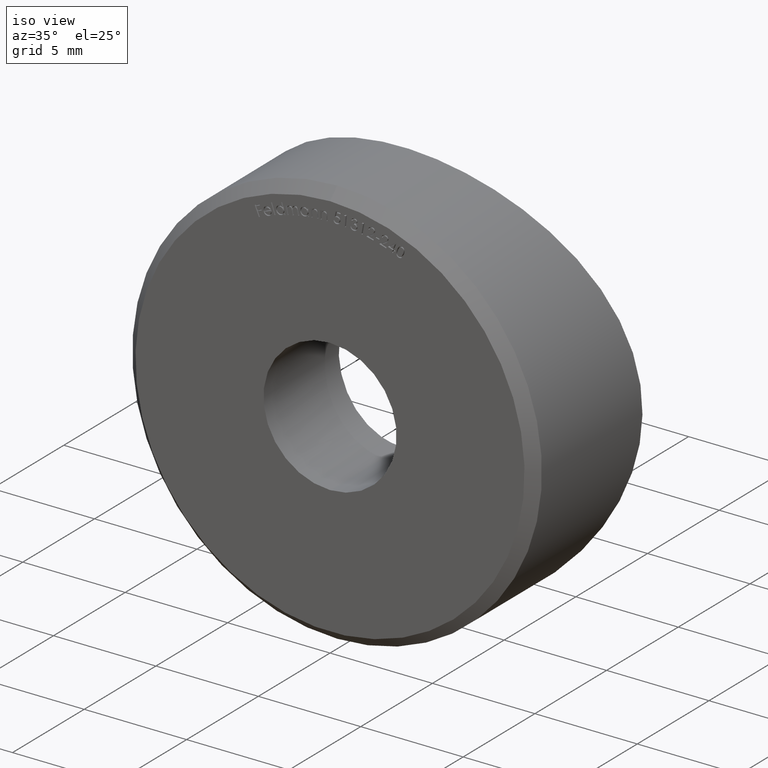
[diagram: clean part render]
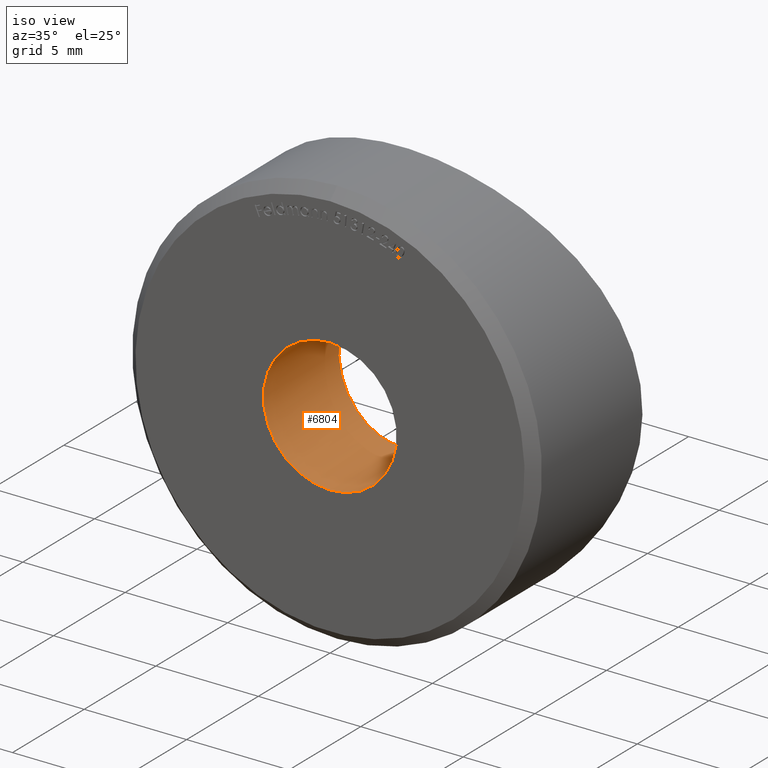
[diagram: same view with one face highlighted and labeled with its STEP entity id]
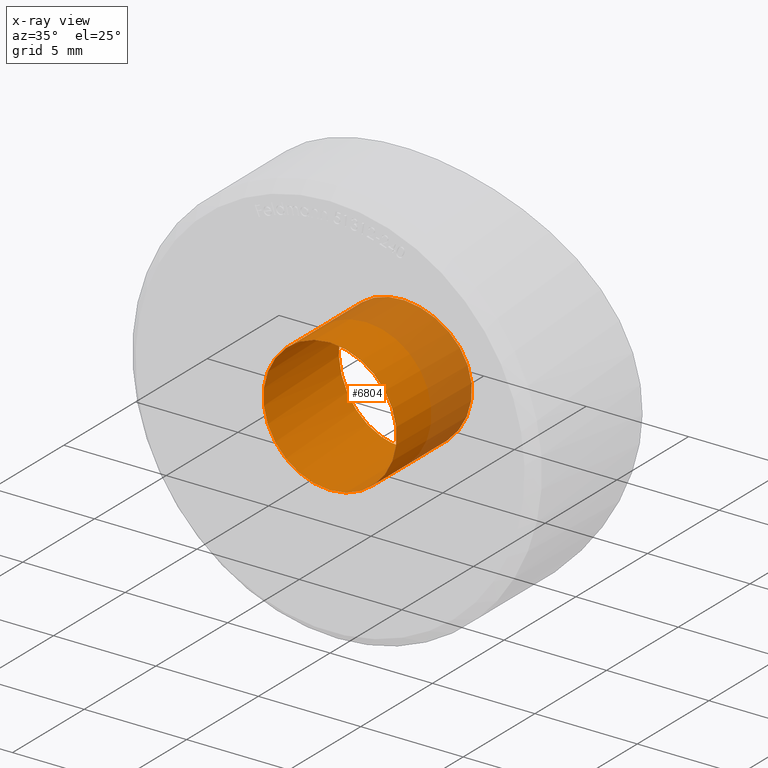
[diagram: x-ray of the same camera — body ghosted, the highlighted face saturated]
A machine part, iso view. The second image highlights one B-rep face of the part: STEP entity #6804.
The next image is the same camera in x-ray: the body ghosted, the highlighted face saturated — about 28% of this face is hidden behind the body in this view.
In plain terms, the highlighted cylindrical surface (bore or boss wall) has radius 3.25 mm, axis along (-0, -1, -0).
Its self-contained STEP definition (entity closure, byte-faithful):
#238 = CARTESIAN_POINT ( 'NONE',  ( 2.582435166560727691, 5.157534035934569161, -1.984734512167307008 ) ) ;
#358 = CARTESIAN_POINT ( 'NONE',  ( 2.819839704047509166, 5.188038072627501940, 1.629648758818288190 ) ) ;
#444 = CARTESIAN_POINT ( 'NONE',  ( -3.146879315023292101, 5.234817270407253531, -0.8394113261485789401 ) ) ;
#484 = CARTESIAN_POINT ( 'NONE',  ( -3.082691481000265910, 5.225161464275912770, 1.051170391345816135 ) ) ;
#521 = CARTESIAN_POINT ( 'NONE',  ( 0.4291155959866739256, 5.003316562383970378, 3.228558586262969765 ) ) ;
#969 = CARTESIAN_POINT ( 'NONE',  ( 0.000000000000000000, 0.000000000000000000, 0.000000000000000000 ) ) ;
#1141 = ORIENTED_EDGE ( 'NONE', *, *, #5044, .F. ) ;
#1146 = CARTESIAN_POINT ( 'NONE',  ( 2.147498635732049355, 5.108498590889064772, 2.448795407009364045 ) ) ;
#1184 = CARTESIAN_POINT ( 'NONE',  ( 2.448021508383575906, 5.141276147427542575, -2.148135978368177934 ) ) ;
#1264 = CARTESIAN_POINT ( 'NONE',  ( 3.250120148735857306, 5.250615306561056350, 0.2104497566037686895 ) ) ;
#1293 = AXIS2_PLACEMENT_3D ( 'NONE', #9097, #5446, #11876 ) ;
#1334 = FACE_OUTER_BOUND ( 'NONE', #4758, .T. ) ;
#1350 = CARTESIAN_POINT ( 'NONE',  ( -3.229269677274341888, 5.247349722291168028, -0.4234125048040465189 ) ) ;
#1393 = CARTESIAN_POINT ( 'NONE',  ( -0.4275380518344800151, 5.003270632450825595, -3.228863590714631027 ) ) ;
#1408 = EDGE_CURVE ( 'NONE', #9081, #9081, #6589, .T. ) ;
#1513 = CARTESIAN_POINT ( 'NONE',  ( -0.8474655071052364930, 5.015903916353784631, -3.144861060122668750 ) ) ;
#2099 = CARTESIAN_POINT ( 'NONE',  ( 1.632114013627159022, 5.062182296721556618, 2.818414611199890896 ) ) ;
#2253 = CARTESIAN_POINT ( 'NONE',  ( 2.148733871589560973, 5.108636782950790156, -2.447496728527361665 ) ) ;
#2330 = CARTESIAN_POINT ( 'NONE',  ( -0.4221747768704007253, 5.003162049178560444, 3.229572058187728079 ) ) ;
#2356 = B_SPLINE_CURVE_WITH_KNOTS ( 'NONE', 3,
 ( #9603, #8597, #5732, #3973, #9476, #3082, #4057, #8641, #2253, #1184, #238, #10362, #10428, #7695, #4946, #10395, #11347, #1264, #6663, #8687, #5842, #3116, #358, #3005, #6818, #1146, #7582, #2099, #4831, #7623, #8562, #521, #6850, #6972, #2330, #11592, #5156, #8892, #6051, #7817, #5923, #8817, #3347, #5117, #6001, #484, #3230, #5030, #10545, #11469, #1350, #444, #9770, #7781, #9647, #8771, #4182, #3271, #5961, #7938, #6930, #9726, #1513, #1393, #2455, #6895 ),
 .UNSPECIFIED., .T., .F.,
 ( 4, 2, 2, 2, 2, 2, 2, 2, 2, 2, 2, 2, 2, 2, 2, 2, 2, 2, 2, 2, 2, 2, 2, 2, 2, 2, 2, 2, 2, 2, 2, 2, 4 ),
 ( 0.000000000000000000, 0.0006359210278306045867, 0.001271842055661209173, 0.001907763083491813760, 0.002543684111322418347, 0.003179605139153022716, 0.003815526166983627520, 0.004451447194814232323, 0.005087368222644836693, 0.005723289250475441063, 0.006359210278306045433, 0.006995131306136650670, 0.007631052333967255040, 0.008266973361797859410, 0.008902894389628464647, 0.009538815417459068149, 0.01017473644528967339, 0.01081065747312027862, 0.01144657850095088213, 0.01208249952878148736, 0.01271842055661209087, 0.01335434158444269610, 0.01399026261227330134, 0.01462618364010390484, 0.01526210466793451008, 0.01589802569576511532, 0.01653394672359571882, 0.01716986775142632232, 0.01780578877925692929, 0.01844170980708753280, 0.01907763083491813630, 0.01971355186274874327, 0.02034947289057934677 ),
 .UNSPECIFIED. ) ;
#2455 = CARTESIAN_POINT ( 'NONE',  ( -0.2150499108967883488, 5.000000000000000000, -3.250000000000000888 ) ) ;
#3005 = CARTESIAN_POINT ( 'NONE',  ( 2.584791864171175124, 5.157830648604959656, 1.981439389069279189 ) ) ;
#3082 = CARTESIAN_POINT ( 'NONE',  ( 1.442239263721961207, 5.048196862764303461, -2.920240353027569569 ) ) ;
#3116 = CARTESIAN_POINT ( 'NONE',  ( 2.921457232206360555, 5.202098512946935038, 1.439796084762929640 ) ) ;
#3230 = CARTESIAN_POINT ( 'NONE',  ( -3.145373074388929435, 5.234590536070766298, 0.8449978764355208227 ) ) ;
#3271 = CARTESIAN_POINT ( 'NONE',  ( -2.150385480687889039, 5.108806223564106297, -2.446038532672659915 ) ) ;
#3347 = CARTESIAN_POINT ( 'NONE',  ( -2.583132212986961829, 5.157624671021097562, 1.983652271927015764 ) ) ;
#3959 = EDGE_LOOP ( 'NONE', ( #9000 ) ) ;
#3973 = CARTESIAN_POINT ( 'NONE',  ( 0.8422358293998255530, 5.015715769217270470, -3.146120052033961834 ) ) ;
#4057 = CARTESIAN_POINT ( 'NONE',  ( 1.628785365800687224, 5.061919544414683614, -2.820394063806773488 ) ) ;
#4182 = CARTESIAN_POINT ( 'NONE',  ( -2.449360428614455021, 5.141432951849284727, -2.146600966553939838 ) ) ;
#4758 = EDGE_LOOP ( 'NONE', ( #1141 ) ) ;
#4831 = CARTESIAN_POINT ( 'NONE',  ( 1.441976982013438491, 5.048179998212295239, 2.920360942320131326 ) ) ;
#4946 = CARTESIAN_POINT ( 'NONE',  ( 3.145545920331514367, 5.234615933909436691, -0.8448765615216186076 ) ) ;
#5030 = CARTESIAN_POINT ( 'NONE',  ( -3.228460125727636854, 5.247224265413160005, 0.4294629260577603747 ) ) ;
#5044 = EDGE_CURVE ( 'NONE', #5456, #5456, #2356, .T. ) ;
#5117 = CARTESIAN_POINT ( 'NONE',  ( -2.818946742385628923, 5.187916077195380282, 1.631253392114658141 ) ) ;
#5156 = CARTESIAN_POINT ( 'NONE',  ( -1.047135578693864755, 5.024969625457599065, 3.083964024302084272 ) ) ;
#5175 = CARTESIAN_POINT ( 'NONE',  ( 0.000000000000000000, 5.000000000000000888, -3.250000000000000444 ) ) ;
#5356 = CYLINDRICAL_SURFACE ( 'NONE', #1293, 3.250000000000000444 ) ;
#5446 = DIRECTION ( 'NONE',  ( -0.000000000000000000, -1.000000000000000000, -0.000000000000000000 ) ) ;
#5456 = VERTEX_POINT ( 'NONE', #5175 ) ;
#5732 = CARTESIAN_POINT ( 'NONE',  ( 0.4264434180833555632, 5.003268988495230829, -3.228866455167879401 ) ) ;
#5842 = CARTESIAN_POINT ( 'NONE',  ( 3.084468863350044554, 5.225424174715231018, 1.045933533420550177 ) ) ;
#5923 = CARTESIAN_POINT ( 'NONE',  ( -2.146023883358506357, 5.108358818845009530, 2.449889132001904724 ) ) ;
#5961 = CARTESIAN_POINT ( 'NONE',  ( -1.987048177762577250, 5.092573537354079249, -2.580679049020069726 ) ) ;
#6001 = CARTESIAN_POINT ( 'NONE',  ( -2.918967894088988047, 5.201750911087713369, 1.444843379730633037 ) ) ;
#6051 = CARTESIAN_POINT ( 'NONE',  ( -1.627814602934459787, 5.061837651537345550, 2.821030492263118195 ) ) ;
#6589 = CIRCLE ( 'NONE', #10978, 3.250000000000000444 ) ;
#6663 = CARTESIAN_POINT ( 'NONE',  ( 3.228949414987504429, 5.247299707505719724, 0.4261378977443253668 ) ) ;
#6804 = ADVANCED_FACE ( 'NONE', ( #11683, #1334 ), #5356, .F. ) ;
#6818 = CARTESIAN_POINT ( 'NONE',  ( 2.450216287825434769, 5.141518995334100950, 2.145877321455287756 ) ) ;
#6850 = CARTESIAN_POINT ( 'NONE',  ( 0.2135048230366514699, 5.000012587018064281, 3.249917893906966171 ) ) ;
#6895 = CARTESIAN_POINT ( 'NONE',  ( 1.761828530288944705E-16, 5.000000000000000000, -3.250000000000000000 ) ) ;
#6930 = CARTESIAN_POINT ( 'NONE',  ( -1.443554947874320593, 5.048298792827389470, -2.919492594220398196 ) ) ;
#6972 = CARTESIAN_POINT ( 'NONE',  ( -0.2109978030792261927, 4.999987487099255112, 3.250081622620013988 ) ) ;
#7325 = DIRECTION ( 'NONE',  ( 0.000000000000000000, 0.000000000000000000, -1.000000000000000000 ) ) ;
#7582 = CARTESIAN_POINT ( 'NONE',  ( 1.983721702801613640, 5.092276730629055947, 2.583041865695764994 ) ) ;
#7623 = CARTESIAN_POINT ( 'NONE',  ( 1.048768862925172352, 5.025041419713670798, 3.083486585384174195 ) ) ;
#7695 = CARTESIAN_POINT ( 'NONE',  ( 3.082978690918155351, 5.225206719536253708, -1.050010385649534417 ) ) ;
#7781 = CARTESIAN_POINT ( 'NONE',  ( -2.921563470123207384, 5.202113776104789977, -1.439532454480769497 ) ) ;
#7817 = CARTESIAN_POINT ( 'NONE',  ( -1.982543221950620493, 5.092152875658099376, 2.584088967683312976 ) ) ;
#7938 = CARTESIAN_POINT ( 'NONE',  ( -1.631629457461084787, 5.062128828798766023, -2.818873911395462617 ) ) ;
#8562 = CARTESIAN_POINT ( 'NONE',  ( 0.8461986512866619403, 5.015867334446159731, 3.145103906425347873 ) ) ;
#8597 = CARTESIAN_POINT ( 'NONE',  ( 0.2150499108967887096, 5.000000000000000000, -3.249999999999999112 ) ) ;
#8641 = CARTESIAN_POINT ( 'NONE',  ( 1.981826496045465458, 5.092092693632163325, -2.584555703128702753 ) ) ;
#8687 = CARTESIAN_POINT ( 'NONE',  ( 3.145907283640577479, 5.234670733938490805, 0.8431934506264089357 ) ) ;
#8771 = CARTESIAN_POINT ( 'NONE',  ( -2.586182703388971937, 5.157999613231343261, -1.979721584527842193 ) ) ;
#8817 = CARTESIAN_POINT ( 'NONE',  ( -2.445886756578095511, 5.141026041220951193, 2.150584395238201552 ) ) ;
#8892 = CARTESIAN_POINT ( 'NONE',  ( -1.438401774077969986, 5.047945617049649059, 2.922041642359909375 ) ) ;
#9000 = ORIENTED_EDGE ( 'NONE', *, *, #1408, .T. ) ;
#9081 = VERTEX_POINT ( 'NONE', #11610 ) ;
#9097 = CARTESIAN_POINT ( 'NONE',  ( 0.000000000000000000, 8.165231402412532091, 0.000000000000000000 ) ) ;
#9476 = CARTESIAN_POINT ( 'NONE',  ( 1.048813183214362788, 5.025042598462899690, -3.083479969123783970 ) ) ;
#9603 = CARTESIAN_POINT ( 'NONE',  ( 1.761828530288944705E-16, 5.000000000000000000, -3.250000000000000000 ) ) ;
#9647 = CARTESIAN_POINT ( 'NONE',  ( -2.821907254063747761, 5.188313711138199835, -1.626185099247966948 ) ) ;
#9726 = CARTESIAN_POINT ( 'NONE',  ( -1.052750469737838701, 5.025250148029929420, -3.082045480473469823 ) ) ;
#9770 = CARTESIAN_POINT ( 'NONE',  ( -3.084331617472059417, 5.225404474577613811, -1.046272082645803181 ) ) ;
#10362 = CARTESIAN_POINT ( 'NONE',  ( 2.820025938915971420, 5.188055802896705870, -1.629600005252397787 ) ) ;
#10395 = CARTESIAN_POINT ( 'NONE',  ( 3.229158249383776713, 5.247331311357136485, -0.4252205798870901110 ) ) ;
#10428 = CARTESIAN_POINT ( 'NONE',  ( 2.920790955711716652, 5.202007454047537394, -1.440923180346524779 ) ) ;
#10545 = CARTESIAN_POINT ( 'NONE',  ( -3.249818524630295968, 5.250568513912571511, 0.2175347884361278628 ) ) ;
#10936 = DIRECTION ( 'NONE',  ( 0.000000000000000000, -1.000000000000000000, 0.000000000000000000 ) ) ;
#10978 = AXIS2_PLACEMENT_3D ( 'NONE', #969, #10936, #7325 ) ;
#11347 = CARTESIAN_POINT ( 'NONE',  ( 3.249878801187870536, 5.250577864950491502, -0.2141444812808914189 ) ) ;
#11469 = CARTESIAN_POINT ( 'NONE',  ( -3.250179184896289986, 5.250624465169170030, -0.2120780358195728799 ) ) ;
#11592 = CARTESIAN_POINT ( 'NONE',  ( -0.8423241288772209678, 5.015697776005911379, 3.146244949644531275 ) ) ;
#11610 = CARTESIAN_POINT ( 'NONE',  ( 0.000000000000000000, 0.000000000000000000, -3.250000000000000444 ) ) ;
#11683 = FACE_OUTER_BOUND ( 'NONE', #3959, .T. ) ;
#11876 = DIRECTION ( 'NONE',  ( 0.000000000000000000, 0.000000000000000000, -1.000000000000000000 ) ) ;